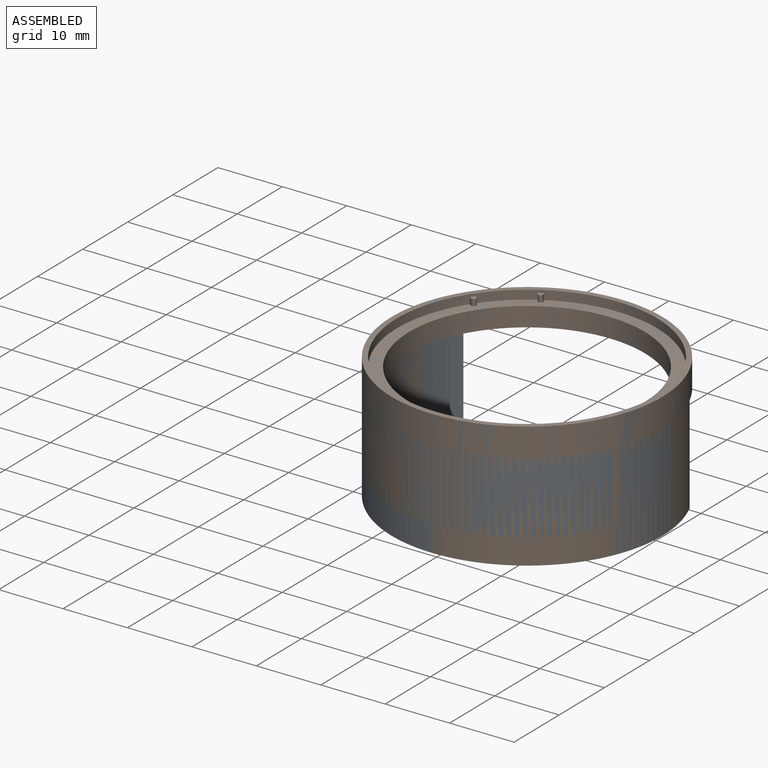
[diagram: assembled view]
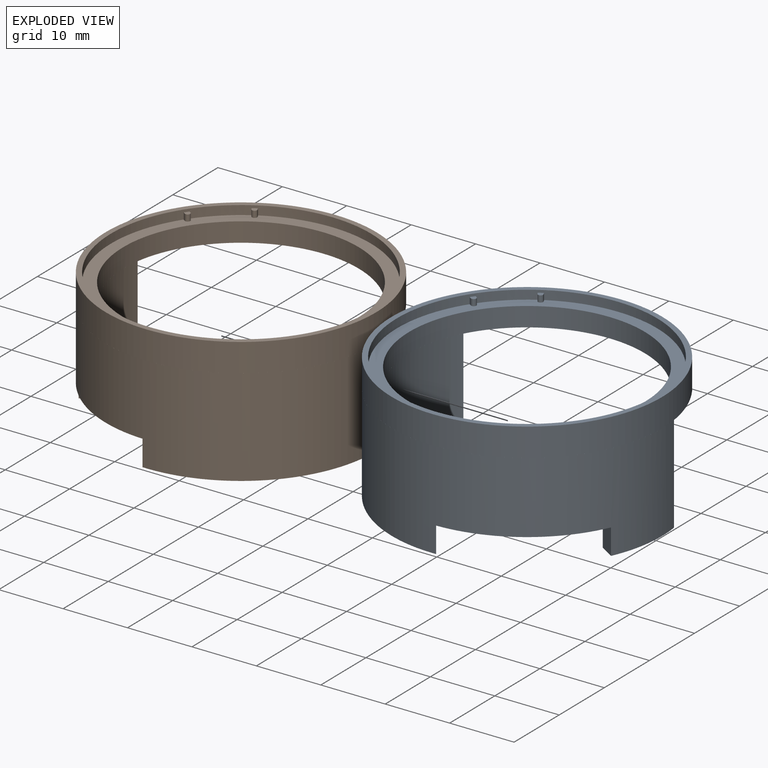
[diagram: exploded view]
GUIDED TOUR — FREECAD ASSEMBLY "cirque"

This assembly has 2 components, labeled P0..P1 below (a component is one placed body or linked part; the same part can appear more than once), held together by 0 modeled joints plus 1 derived contact edge. A joint is a constraint between two components; its type names the relative motion it leaves free:
  CONTACT — a derived adjacency edge — the two components touch in the source model (clearance under 2% of the assembly's diagonal); it is measured from the geometry, not a modeled constraint.
Axis/direction vectors are unit vectors and 'through' points are millimeter coordinates, both in the assembly's world frame.

MATES
  1. CONTACT "contact_0_1": P0 <-> P1, contact direction (-1.000, 0.000, 0.000) through (13.10, -12.78, 18.10) mm (derived from contact, not a modeled constraint)

ASSEMBLY ORDER
  1. P0 — the base component [order heuristic]
  2. P1 [order heuristic]
Order-tag legend:
  [order heuristic] — this assembly is geometrically interlocked (no collision-free removal order exists), so components are listed in mate-graph order; insertion feasibility is not verified.

Of the 2 components, 1 carries a construction recipe — the FreeCAD feature program (sketches with constraints, then the solid features that consume them) that regenerates the part from scratch, quoted from this document or from the linked companion document it references; the rest are supplied as boundary geometry only. The tour below walks the components in assembly order: each is shown spotlighted twice — in the assembled view, then in the exploded view, where a leader line traces a displaced component back to its assembled socket (components that stay in place when exploded have no leader line; saturated green if recipe-attached, orange if geometry-only; every other component desaturated gray) — followed by its recipe or geometry summary and the mates that hold it.
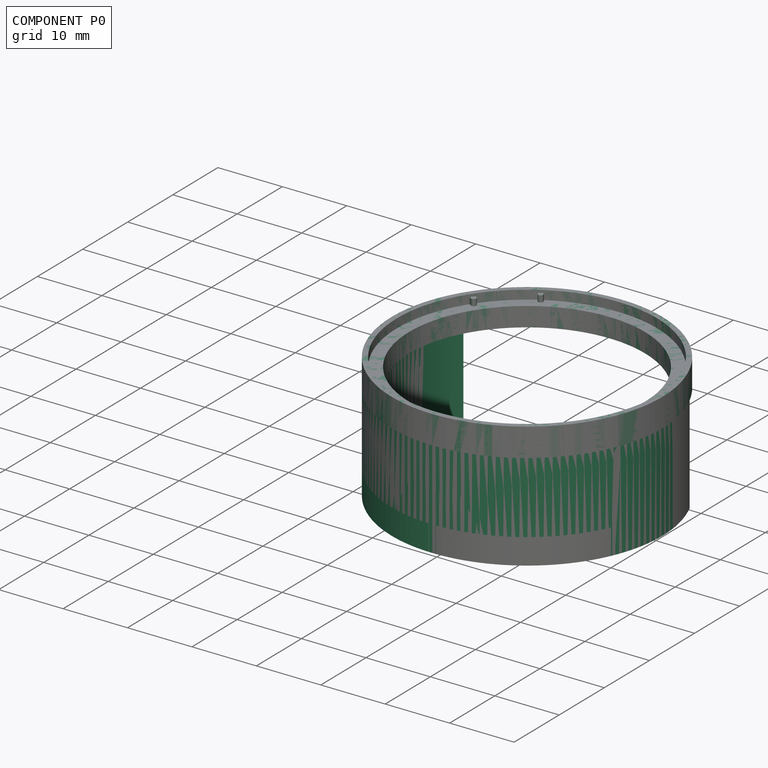
[diagram: component P0 — assembled]
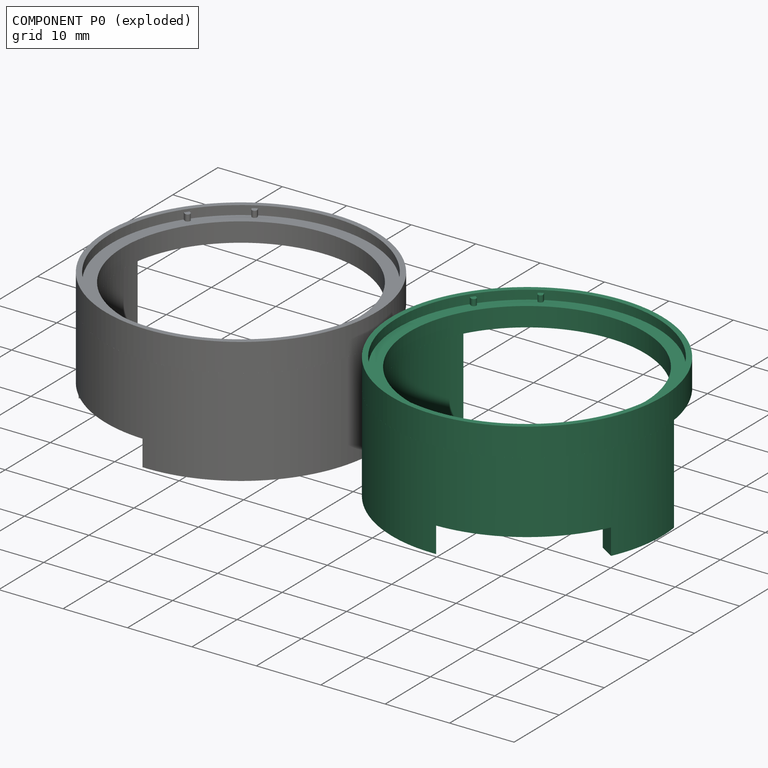
[diagram: component P0 — exploded]
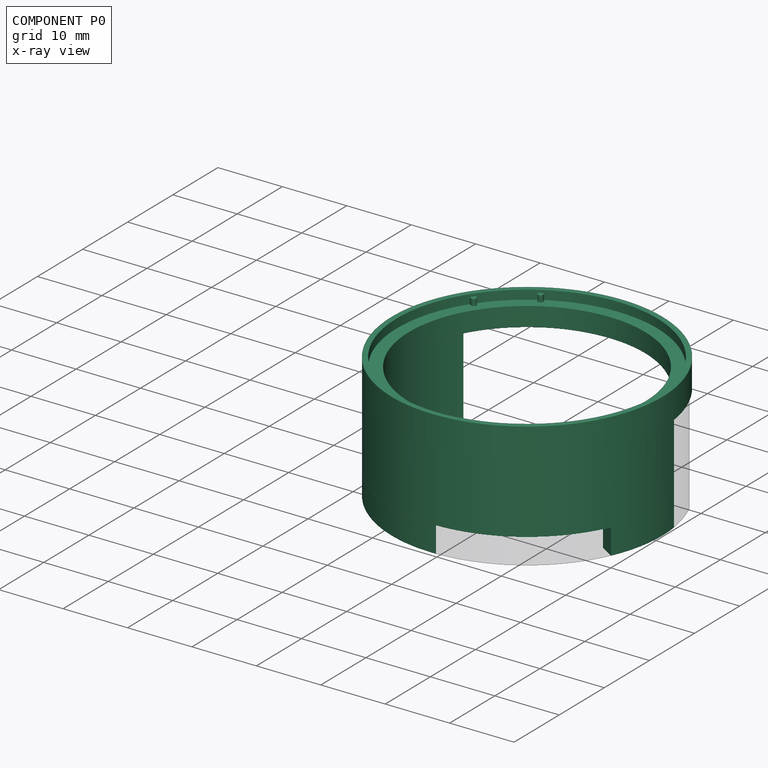
[diagram: component P0 — x-ray view]
COMPONENT P0 — recipe-attached ("mount-left", modeled in this document).
Held by: resting contact with P1 (derived edge).
Construction recipe (the document's own serialized feature program — sketch geometry with constraints, then the solid features built on it; lengths are millimeters unless a unit is written):

FEATURE [Sketcher::SketchObject] Sketch
  ArcFitTolerance = 1e-06
  AttachmentSupport = -> [XY_Plane001]
  FullyConstrained = false
  MakeInternals = false
  MapMode = 5
  sketch-geometry (4):
    g0: ArcOfCircle CenterX=0 CenterY=0 CenterZ=0 NormalX=0 NormalY=0 NormalZ=1 AngleXU=0 Radius=21 StartAngle=2.70864 EndAngle=6.42098
    g1: ArcOfCircle CenterX=0 CenterY=0 CenterZ=0 NormalX=0 NormalY=0 NormalZ=1 AngleXU=0 Radius=18.3 StartAngle=2.63928 EndAngle=6.44147
    g2: LineSegment StartX=-19.0623 StartY=8.81065 StartZ=0 EndX=-16.0394 EndY=8.81065 EndZ=0
    g3: LineSegment StartX=18.0712 StartY=2.88445 StartZ=0 EndX=20.801 EndY=2.88445 EndZ=0
  constraints (10):
    c: Radius(g0) = 21
    c: Coincident(g0,g-1)
    c: Radius(g1) = 18.3
    c: Coincident(g1,g0)
    c: Coincident(g2,g0)
    c: Coincident(g2,g1)
    c: Coincident(g3,g1)
    c: Coincident(g3,g0)
    c: Horizontal(g2)
    c: Horizontal(g3)
FEATURE [PartDesign::Pad] Pad
  Direction = (0,0,1)
  Length = 15.1
  Length2 = 10
  Profile = -> Sketch
  ReferenceAxis = -> Sketch [N_Axis]
  Refine = true
  Suppressed = false
  Type = 0
FEATURE [Sketcher::SketchObject] Sketch001
  ArcFitTolerance = 1e-06
  AttachmentSupport = -> [XY_Plane001]
  FullyConstrained = false
  MakeInternals = false
  MapMode = 5
  sketch-geometry (14):
    g0: Circle [constr] CenterX=0 CenterY=0 CenterZ=0 NormalX=0 NormalY=0 NormalZ=1 AngleXU=0 Radius=15.25
    g1: LineSegment [constr] StartX=0 StartY=0 StartZ=0 EndX=15.25 EndY=0 EndZ=0
    g2: LineSegment [constr] StartX=0 StartY=0 StartZ=0 EndX=-11.6822 EndY=-9.80251 EndZ=0
    g3: Circle CenterX=15.25 CenterY=0 CenterZ=0 NormalX=0 NormalY=0 NormalZ=1 AngleXU=0 Radius=1.7
    g4: Circle CenterX=-11.6822 CenterY=-9.80251 CenterZ=0 NormalX=0 NormalY=0 NormalZ=1 AngleXU=0 Radius=1.7
    g5: ArcOfCircle CenterX=15.25 CenterY=0 CenterZ=0 NormalX=0 NormalY=0 NormalZ=1 AngleXU=0 Radius=3 StartAngle=1.66932 EndAngle=4.61387
    g6: ArcOfCircle CenterX=-11.6822 CenterY=-9.80251 CenterZ=0 NormalX=0 NormalY=0 NormalZ=1 AngleXU=0 Radius=3 StartAngle=5.50904 EndAngle=8.45359
    g7: LineSegment [constr] StartX=-11.6822 StartY=-9.80251 StartZ=0 EndX=15.25 EndY=0 EndZ=0
    g8: LineSegment StartX=-13.3751 StartY=-7.32585 StartZ=0 EndX=-16.3659 EndY=-9.06894 EndZ=0
    g9: LineSegment StartX=-16.3659 StartY=-9.06894 StartZ=0 EndX=-12.9413 EndY=-14.0541 EndZ=0
    g10: LineSegment StartX=-9.53712 StartY=-11.8998 StartZ=0 EndX=-12.9413 EndY=-14.0541 EndZ=0
    g11: LineSegment StartX=14.9549 StartY=2.98545 StartZ=0 EndX=18.203 EndY=2.81232 EndZ=0
    g12: LineSegment StartX=18.203 StartY=2.81232 StartZ=0 EndX=18.9442 EndY=-3.11774 EndZ=0
    g13: LineSegment StartX=18.9442 StartY=-3.11774 StartZ=0 EndX=14.9549 EndY=-2.98545 EndZ=0
  constraints (30):
    c: Diameter(g0) = 30.5
    c: Coincident(g0,g-1)
    c: Coincident(g1,g0)
    c: PointOnObject(g1,g0)
    c: Coincident(g2,g0)
    c: PointOnObject(g2,g0)
    c: Angle(g1,g-1) = 0
    c: Angle(g-1,g2) = 0.698132
    c: Diameter(g3) = 3.4
    c: Coincident(g3,g1)
    c: Diameter(g4) = 3.4
    c: Coincident(g4,g2)
    c: Radius(g5) = 3
    c: Coincident(g5,g1)
    c: PointOnObject(g5,g0)
    c: PointOnObject(g5,g0)
    c: Radius(g6) = 3
    c: Coincident(g6,g2)
    c: PointOnObject(g6,g0)
    c: PointOnObject(g6,g0)
    c: Coincident(g7,g2)
    c: Coincident(g7,g1)
    c: Coincident(g8,g6)
    c: Coincident(g9,g8)
    c: Coincident(g10,g6)
    c: Coincident(g10,g9)
    c: Coincident(g11,g5)
    c: Coincident(g12,g11)
    c: Coincident(g13,g12)
    c: Coincident(g13,g5)
FEATURE [PartDesign::Pad] Pad001
  BaseFeature = -> Pad
  Direction = (0,0,1)
  Length = 3.4
  Length2 = 10
  Profile = -> Sketch001
  ReferenceAxis = -> Sketch001 [N_Axis]
  Refine = true
  Suppressed = false
  Type = 0
FEATURE [Sketcher::SketchObject] Sketch002
  ArcFitTolerance = 1e-06
  AttachmentSupport = -> [Pad001]
  FullyConstrained = false
  MakeInternals = false
  MapMode = 5
  Placement = pos=(0,0,0) rot=(1,0,0;3.14159rad)
  sketch-geometry (4):
    g0: LineSegment StartX=-4.61462 StartY=16.5029 StartZ=0 EndX=7.15867 EndY=26.6708 EndZ=0
    g1: LineSegment StartX=7.15867 StartY=26.6708 StartZ=0 EndX=21.4504 EndY=10.1569 EndZ=0
    g2: LineSegment StartX=21.4504 StartY=10.1569 StartZ=0 EndX=10.1664 EndY=3.00847 EndZ=0
    g3: LineSegment StartX=10.1664 StartY=3.00847 StartZ=0 EndX=-4.61462 EndY=16.5029 EndZ=0
  constraints (4):
    c: Coincident(g0,g1)
    c: Coincident(g1,g2)
    c: Coincident(g2,g3)
    c: Coincident(g3,g0)
FEATURE [PartDesign::Pocket] Pocket
  BaseFeature = -> Pad001
  Direction = (0,0,1)
  Length = 4
  Length2 = 5
  Profile = -> Sketch002
  ReferenceAxis = -> Sketch002 [N_Axis]
  Refine = true
  Suppressed = false
  Type = 0
FEATURE [PartDesign::Body] Body
  AllowCompound = false
  Group = -> [Sketch,Pad,Sketch001,Pad001,Sketch002,Pocket]
  Origin = -> Origin001
  Tip = -> Pocket
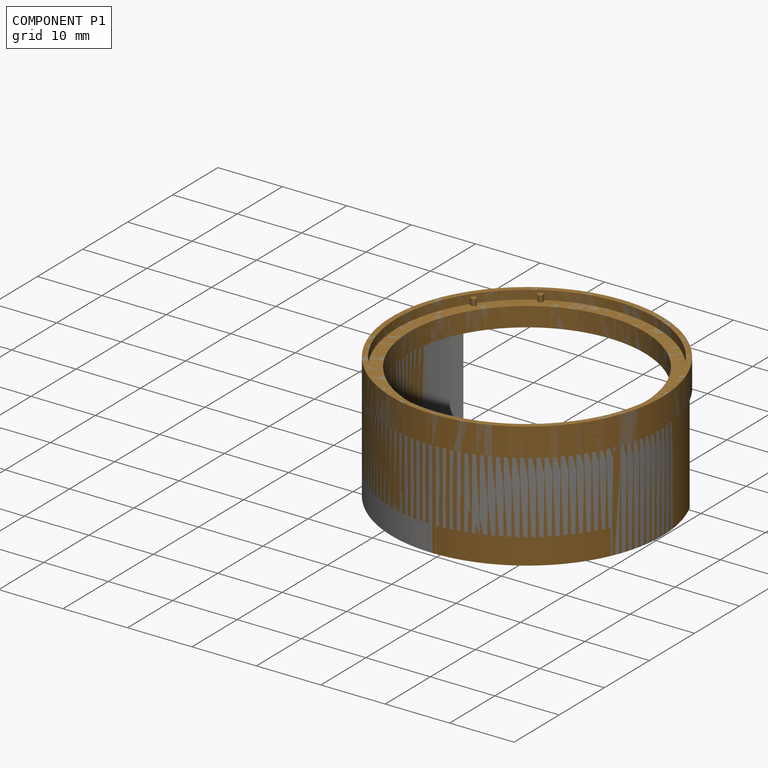
[diagram: component P1 — assembled]
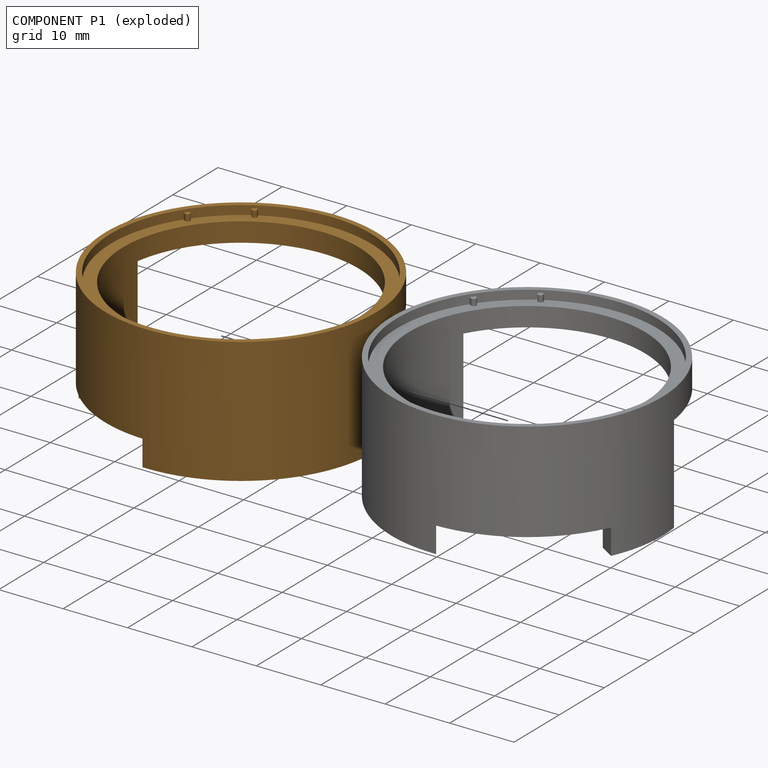
[diagram: component P1 — exploded]
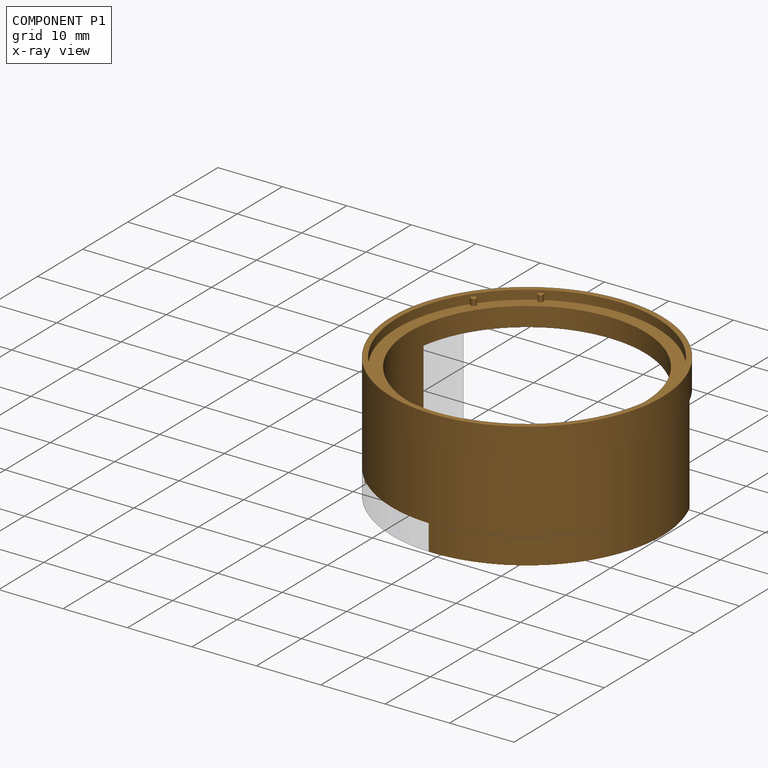
[diagram: component P1 — x-ray view]
COMPONENT P1 — geometry summary ("mount-right"; no construction recipe available for this part):
  bounding box: 42.0 x 42.0 x 19.5 mm
  tessellated surface: 4,164 triangles
  volume: 4052 mm^3 (12% of its bounding box)
Held by: resting contact with P0 (derived edge).
PROVENANCE & LICENSES
Assembly and component geometry: a FreeCAD (.FCStd) document from a public repository crawl; components, placements and joints were extracted with FreeCAD and each solid tessellated.
Construction recipes: the document's own serialized feature recipes (and, for linked parts, the recipes of companion documents from the same project).
License: other.
Joints: native FreeCAD joints and A2plus constraints are mapped to standard mate types; edges marked 'derived from contact' connect touching components and are measured from the geometry, not modeled.
Verification: 1 of this assembly's 2 components carries a construction recipe (1 from this document itself); the rest are geometry-only. Every component's tessellation passed the extraction mesh gates (mesh-volume checksum against the B-rep where available, bounding-box inflation <= 2%).
Renders: orthographic iso camera (az 35 / el 25); the floor grid conveys scale (grid pitch printed in each image; no ruler). In the exploded view each component is displaced by its stored offset vector: the offsets alone carry the explosion direction (mate normal/axis signs are not orientation cues and do not encode it), and separation distances are assigned per mate-chain, not proportionally to assembly-order depth.
